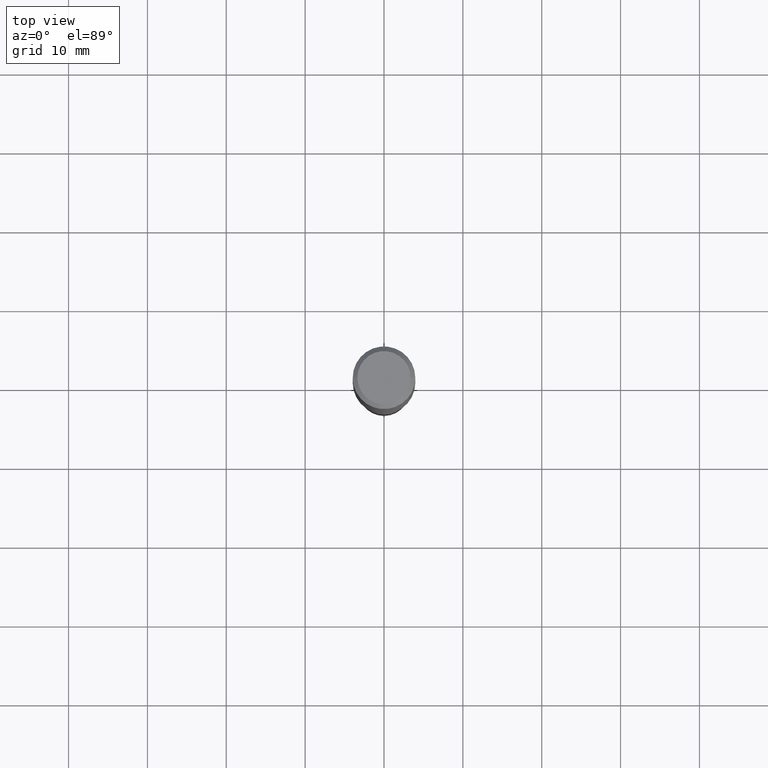
[diagram: clean part render]
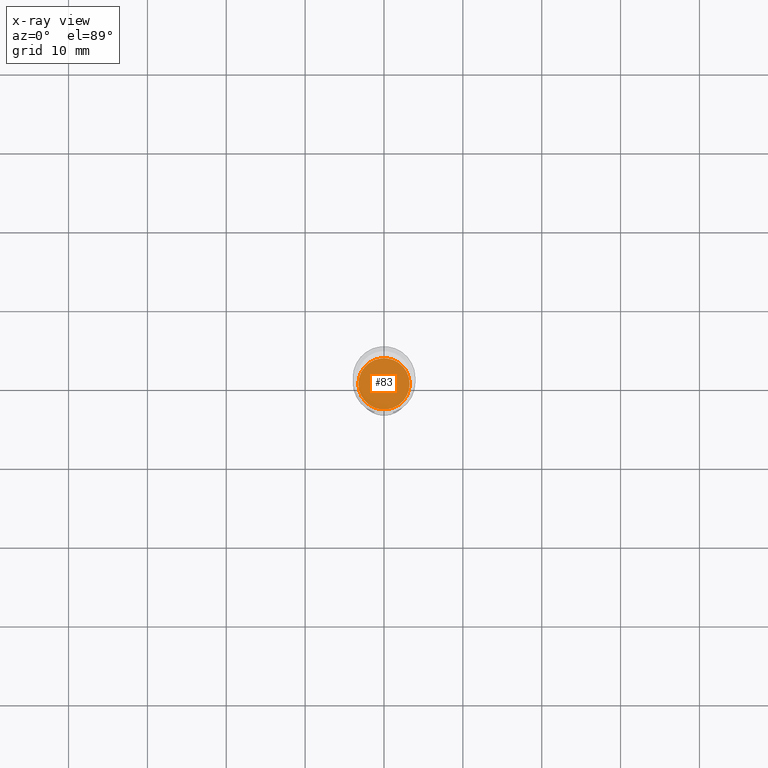
[diagram: x-ray — body ghosted, one internal face saturated and labeled with its STEP entity id]
A machine part, top view, then the same camera in x-ray: the body is ghosted and one INTERNAL B-rep face — a face not visible from any outside direction — is saturated and labeled: STEP entity #83.
In plain terms, the highlighted planar face has unit normal (-0, 0, 1).
Its self-contained STEP definition (entity closure, byte-faithful):
#12 = DIRECTION ( 'NONE',  ( -2.445468806185136597E-29, 3.491481338843145583E-15, 1.000000000000000000 ) ) ;
#37 = CIRCLE ( 'NONE', #280, 0.1280000000000000027 ) ;
#71 = DIRECTION ( 'NONE',  ( 1.000000000000000000, -6.982962677686263555E-15, 0.000000000000000000 ) ) ;
#83 = ADVANCED_FACE ( 'NONE', ( #94 ), #485, .F. ) ;
#90 = ORIENTED_EDGE ( 'NONE', *, *, #343, .F. ) ;
#94 = FACE_OUTER_BOUND ( 'NONE', #425, .T. ) ;
#152 = AXIS2_PLACEMENT_3D ( 'NONE', #371, #331, #208 ) ;
#155 = VERTEX_POINT ( 'NONE', #366 ) ;
#193 = EDGE_CURVE ( 'NONE', #155, #346, #37, .T. ) ;
#194 = CARTESIAN_POINT ( 'NONE',  ( 0.1280000000000000027, -7.192102409882993604E-15, -1.803900000000000503 ) ) ;
#208 = DIRECTION ( 'NONE',  ( 1.000000000000000000, -6.982962677686265922E-15, 4.876176775795935793E-29 ) ) ;
#254 = AXIS2_PLACEMENT_3D ( 'NONE', #392, #12, #312 ) ;
#280 = AXIS2_PLACEMENT_3D ( 'NONE', #378, #415, #71 ) ;
#312 = DIRECTION ( 'NONE',  ( 1.000000000000000000, -6.982962677686263555E-15, 0.000000000000000000 ) ) ;
#331 = DIRECTION ( 'NONE',  ( -2.438088387897960049E-29, 3.491481338843145188E-15, 1.000000000000000000 ) ) ;
#343 = EDGE_CURVE ( 'NONE', #346, #155, #369, .T. ) ;
#346 = VERTEX_POINT ( 'NONE', #194 ) ;
#366 = CARTESIAN_POINT ( 'NONE',  ( -0.1280000000000000027, -5.386139258192112764E-15, -1.803900000000000503 ) ) ;
#369 = CIRCLE ( 'NONE', #254, 0.1280000000000000027 ) ;
#371 = CARTESIAN_POINT ( 'NONE',  ( 4.411381179477369277E-29, -6.298283187139151433E-15, -1.803900000000000503 ) ) ;
#378 = CARTESIAN_POINT ( 'NONE',  ( 4.411381179477369277E-29, -6.298283187139151433E-15, -1.803900000000000503 ) ) ;
#392 = CARTESIAN_POINT ( 'NONE',  ( 4.411381179477369277E-29, -6.298283187139151433E-15, -1.803900000000000503 ) ) ;
#397 = ORIENTED_EDGE ( 'NONE', *, *, #193, .F. ) ;
#415 = DIRECTION ( 'NONE',  ( -2.445468806185136597E-29, 3.491481338843145583E-15, 1.000000000000000000 ) ) ;
#425 = EDGE_LOOP ( 'NONE', ( #90, #397 ) ) ;
#485 = PLANE ( 'NONE',  #152 ) ;